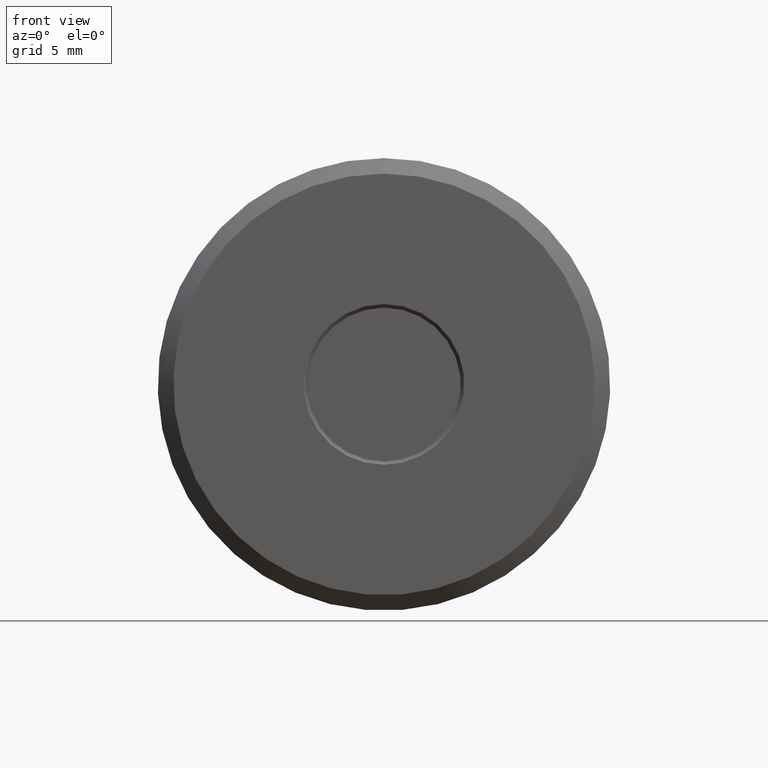
[diagram: clean part render]
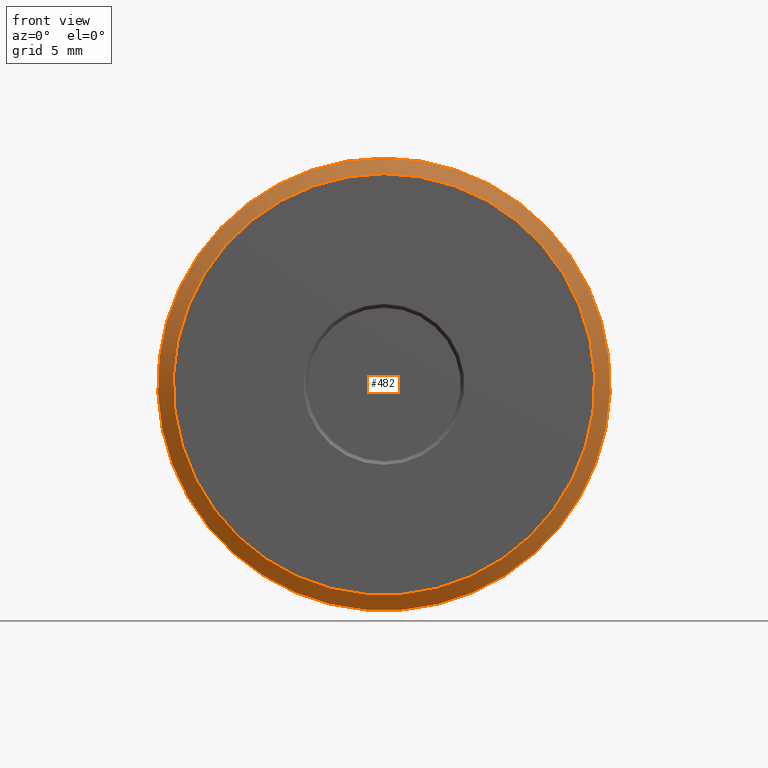
[diagram: same view with one face highlighted and labeled with its STEP entity id]
A machine part, front view. The second image highlights one B-rep face of the part: STEP entity #482.
In plain terms, the highlighted conical surface has half-angle 45 deg.
Its self-contained STEP definition (entity closure, byte-faithful):
#37 = DIRECTION ( 'NONE',  ( -0.0000000000000000000, 1.000000000000000000, -0.0000000000000000000 ) ) ;
#39 = VERTEX_POINT ( 'NONE', #333 ) ;
#43 = CARTESIAN_POINT ( 'NONE',  ( 0.0000000000000000000, 0.03000000000000031100, 0.0000000000000000000 ) ) ;
#58 = CARTESIAN_POINT ( 'NONE',  ( 0.0000000000000000000, 0.03000000000000031100, 0.0000000000000000000 ) ) ;
#91 = DIRECTION ( 'NONE',  ( 0.0000000000000000000, 0.0000000000000000000, 1.000000000000000000 ) ) ;
#108 = DIRECTION ( 'NONE',  ( 0.0000000000000000000, 0.0000000000000000000, 1.000000000000000000 ) ) ;
#113 = CIRCLE ( 'NONE', #163, 0.4375000000000000000 ) ;
#157 = EDGE_CURVE ( 'NONE', #382, #382, #218, .T. ) ;
#163 = AXIS2_PLACEMENT_3D ( 'NONE', #43, #37, #108 ) ;
#185 = FACE_BOUND ( 'NONE', #318, .T. ) ;
#197 = CONICAL_SURFACE ( 'NONE', #246, 0.4375000000000000000, 0.7853981633974429500 ) ;
#215 = ORIENTED_EDGE ( 'NONE', *, *, #416, .F. ) ;
#218 = CIRCLE ( 'NONE', #540, 0.4074999999999999700 ) ;
#246 = AXIS2_PLACEMENT_3D ( 'NONE', #58, #262, #91 ) ;
#262 = DIRECTION ( 'NONE',  ( -0.0000000000000000000, 1.000000000000000000, -0.0000000000000000000 ) ) ;
#270 = FACE_OUTER_BOUND ( 'NONE', #368, .T. ) ;
#283 = ORIENTED_EDGE ( 'NONE', *, *, #157, .T. ) ;
#293 = DIRECTION ( 'NONE',  ( 0.0000000000000000000, 0.0000000000000000000, 1.000000000000000000 ) ) ;
#298 = DIRECTION ( 'NONE',  ( -0.0000000000000000000, 1.000000000000000000, -0.0000000000000000000 ) ) ;
#299 = CARTESIAN_POINT ( 'NONE',  ( 0.0000000000000000000, -3.179309805437058200E-017, 0.0000000000000000000 ) ) ;
#318 = EDGE_LOOP ( 'NONE', ( #283 ) ) ;
#333 = CARTESIAN_POINT ( 'NONE',  ( 0.0000000000000000000, 0.03000000000000031100, 0.4375000000000000000 ) ) ;
#368 = EDGE_LOOP ( 'NONE', ( #215 ) ) ;
#382 = VERTEX_POINT ( 'NONE', #488 ) ;
#416 = EDGE_CURVE ( 'NONE', #39, #39, #113, .T. ) ;
#482 = ADVANCED_FACE ( 'NONE', ( #185, #270 ), #197, .T. ) ;
#488 = CARTESIAN_POINT ( 'NONE',  ( 0.0000000000000000000, -3.179309805437058200E-017, 0.4074999999999999700 ) ) ;
#540 = AXIS2_PLACEMENT_3D ( 'NONE', #299, #298, #293 ) ;